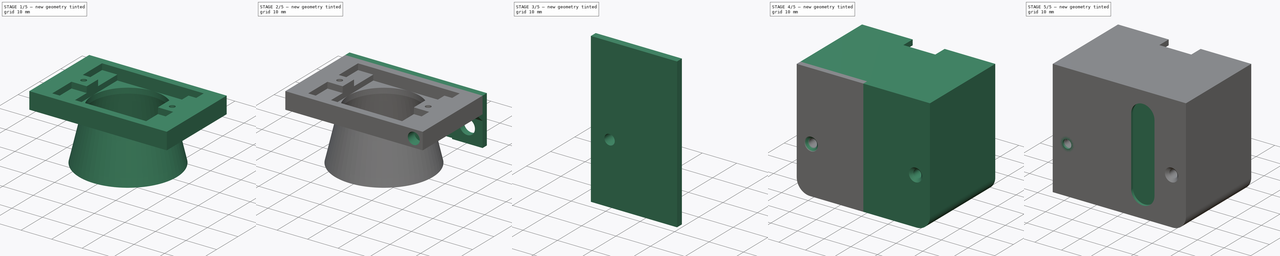
[diagram: build sequence overview — one tinted view per stage of 5, left to right]
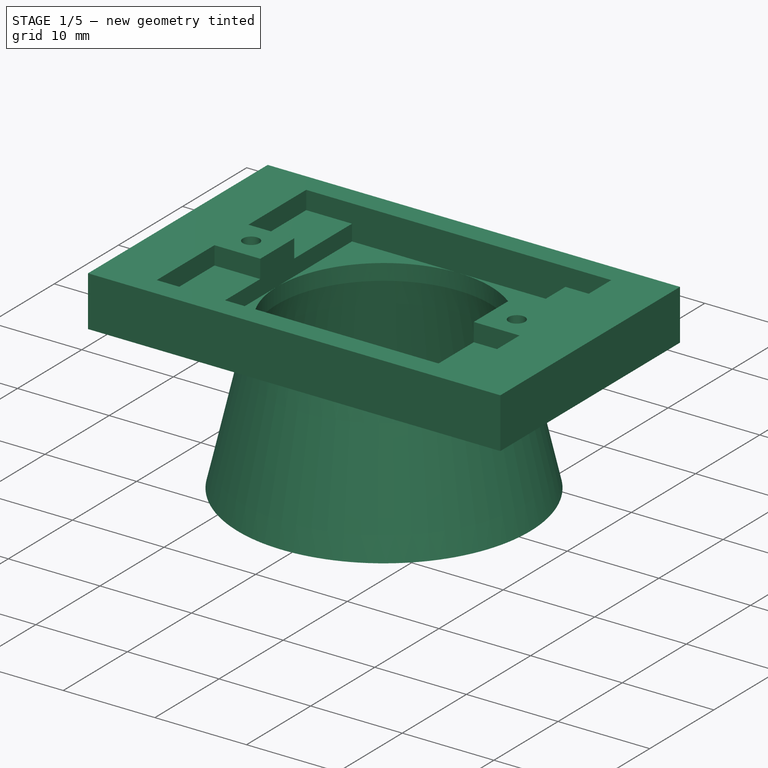
[diagram: stage 1 of 5 — iso view after this stage's code; geometry added in this stage tinted green]
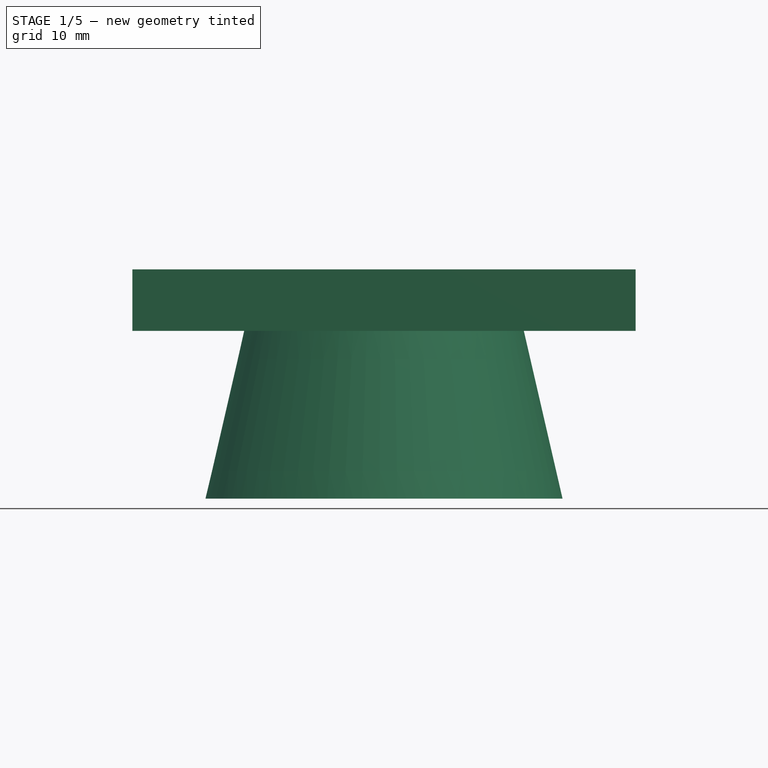
[diagram: stage 1 of 5 — front view after this stage's code; geometry added in this stage tinted green]
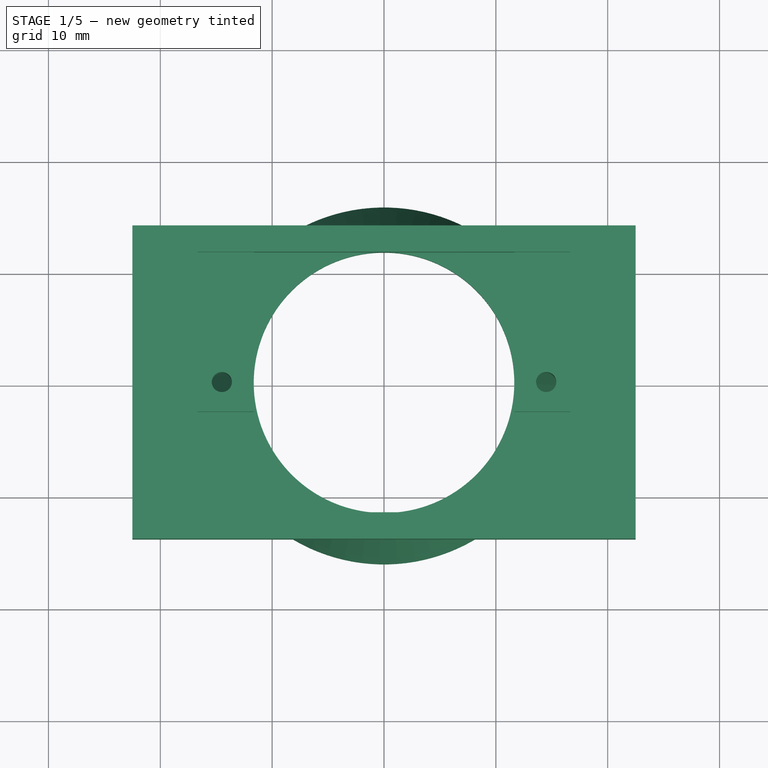
[diagram: stage 1 of 5 — top view after this stage's code; geometry added in this stage tinted green]
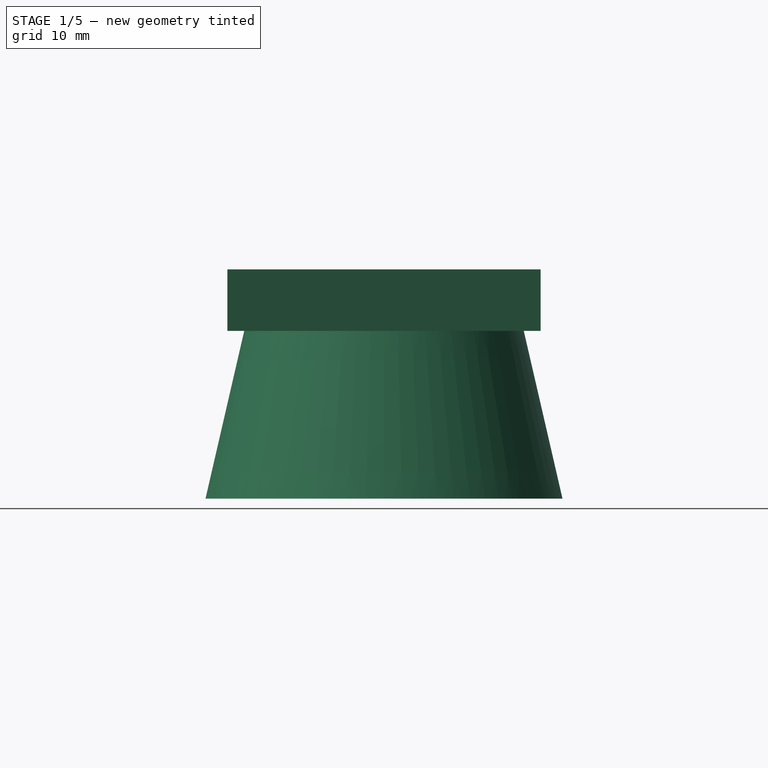
[diagram: stage 1 of 5 — right view after this stage's code; geometry added in this stage tinted green]
FCSTD DOCUMENT  (FreeCAD 0.20R)
Label: sensor
License: All rights reserved
LicenseURL: http://en.wikipedia.org/wiki/All_rights_reserved
objects: Sketcher::SketchObject×23, PartDesign::Pad×15, PartDesign::Pocket×8, PartDesign::Mirrored×7, PartDesign::Chamfer×3, PartDesign::Body×3, PartDesign::ShapeBinder×2, PartDesign::Fillet×2, PartDesign::MultiTransform×1, PartDesign::Revolution×1
note: 94 computed .brp shape members not serialized (recipe doc carries the construction recipe); baked Part::Feature solids carry a one-line shape summary decoded from their .brp

FEATURE [Sketcher::SketchObject] Sketch
  FullyConstrained = true
  MapMode = 5
  Support = -> [XY_Plane]
  sketch-geometry (6):
    g0: LineSegment StartX=-22.5 StartY=14 StartZ=0 EndX=22.5 EndY=14 EndZ=0
    g1: LineSegment StartX=22.5 StartY=14 StartZ=0 EndX=22.5 EndY=-14 EndZ=0
    g2: LineSegment StartX=22.5 StartY=-14 StartZ=0 EndX=-22.5 EndY=-14 EndZ=0
    g3: LineSegment StartX=-22.5 StartY=-14 StartZ=0 EndX=-22.5 EndY=14 EndZ=0
    g4: Circle CenterX=14.5 CenterY=0 CenterZ=0 NormalX=0 NormalY=0 NormalZ=1 AngleXU=0 Radius=0.9
    g5: Circle CenterX=-14.5 CenterY=0 CenterZ=0 NormalX=0 NormalY=0 NormalZ=1 AngleXU=0 Radius=0.9
  constraints (16):
    c: Coincident(g0,g1)
    c: Coincident(g1,g2)
    c: Coincident(g2,g3)
    c: Coincident(g3,g0)
    c: Horizontal(g0)
    c: Horizontal(g2)
    c: Vertical(g1)
    c: Vertical(g3)
    c: DistanceX(g0,g0) = 45
    c: Symmetric(g0,g1,g-1)
    c: DistanceY(g1,g1) = 28
    c: PointOnObject(g4,g-1)
    c: Symmetric(g5,g4,g-1)
    c: Equal(g5,g4)
    c: Diameter(g4) = 1.8
    c: DistanceX(g5,g4) = 29
FEATURE [PartDesign::Pad] Pad
  Direction = (0,0,1)
  Length = 5.5
  Length2 = 10
  Profile = -> Sketch
  ReferenceAxis = -> Sketch [N_Axis]
  Reversed = true
  Type = 0
FEATURE [Sketcher::SketchObject] Sketch001
  FullyConstrained = true
  MapMode = 5
  Support = -> [Pad]
  sketch-geometry (4):
    g0: LineSegment StartX=-11.65 StartY=11.65 StartZ=0 EndX=11.65 EndY=11.65 EndZ=0
    g1: LineSegment StartX=11.65 StartY=11.65 StartZ=0 EndX=11.65 EndY=-11.65 EndZ=0
    g2: LineSegment StartX=11.65 StartY=-11.65 StartZ=0 EndX=-11.65 EndY=-11.65 EndZ=0
    g3: LineSegment StartX=-11.65 StartY=-11.65 StartZ=0 EndX=-11.65 EndY=11.65 EndZ=0
  constraints (11):
    c: Coincident(g0,g1)
    c: Coincident(g1,g2)
    c: Coincident(g2,g3)
    c: Coincident(g3,g0)
    c: Horizontal(g0)
    c: Horizontal(g2)
    c: Vertical(g1)
    c: Vertical(g3)
    c: Symmetric(g1,g0,g-1)
    c: Equal(g1,g2)
    c: DistanceX(g2,g2) = 23.3
FEATURE [PartDesign::Pocket] Pocket
  BaseFeature = -> Pad
  Direction = (0,0,-1)
  Length = 3.75
  Length2 = 5
  Profile = -> Sketch001
  ReferenceAxis = -> Sketch001 [N_Axis]
  Type = 0
FEATURE [Sketcher::SketchObject] Sketch002
  ExternalGeometry = -> [Pocket]
  FullyConstrained = true
  MapMode = 5
  Support = -> [Pocket]
  sketch-geometry (4):
    g0: LineSegment StartX=11.65 StartY=11.65 StartZ=0 EndX=16.65 EndY=11.65 EndZ=0
    g1: LineSegment StartX=16.65 StartY=11.65 StartZ=0 EndX=16.65 EndY=2.65 EndZ=0
    g2: LineSegment StartX=16.65 StartY=2.65 StartZ=0 EndX=11.65 EndY=2.65 EndZ=0
    g3: LineSegment StartX=11.65 StartY=2.65 StartZ=0 EndX=11.65 EndY=11.65 EndZ=0
  constraints (11):
    c: Coincident(g0,g1)
    c: Coincident(g1,g2)
    c: Coincident(g2,g3)
    c: Coincident(g3,g0)
    c: Horizontal(g0)
    c: Horizontal(g2)
    c: Vertical(g1)
    c: Vertical(g3)
    c: Coincident(g0,g-5)
    c: DistanceX(g2,g2) = 5
    c: DistanceY(g1,g1) = 9
FEATURE [PartDesign::Pocket] Pocket001
  BaseFeature = -> Pocket
  Direction = (0,0,-1)
  Length = 2
  Length2 = 5
  Profile = -> Sketch002
  ReferenceAxis = -> Sketch002 [N_Axis]
  Type = 0
FEATURE [PartDesign::Mirrored] Mirrored
  MirrorPlane = -> Sketch002 [V_Axis]
FEATURE [PartDesign::Mirrored] Mirrored001
  MirrorPlane = -> XZ_Plane
FEATURE [PartDesign::MultiTransform] MultiTransform
  BaseFeature = -> Pocket001
  Originals = -> [Pocket001]
  Transformations = -> [Mirrored,Mirrored001]
FEATURE [Sketcher::SketchObject] Sketch003
  FullyConstrained = true
  MapMode = 5
  Placement = pos=(0,0,-5.5) rot=(1,0,0;3.14159rad)
  Support = -> [MultiTransform]
  sketch-geometry (1):
    g0: Circle CenterX=0 CenterY=0 CenterZ=0 NormalX=0 NormalY=0 NormalZ=1 AngleXU=0 Radius=12.5
  constraints (2):
    c: Coincident(g0,g-1)
    c: Diameter(g0) = 25
FEATURE [PartDesign::Pad] Pad001
  BaseFeature = -> MultiTransform
  Direction = (0,0,-1)
  Length = 15
  Length2 = 10
  Profile = -> Sketch003
  ReferenceAxis = -> Sketch003 [N_Axis]
  TaperAngle = 13
  Type = 0
FEATURE [Sketcher::SketchObject] Sketch004
  ExternalGeometry = -> [Pad001]
  FullyConstrained = true
  MapMode = 5
  Placement = pos=(0,0,-3.75) rot=(0,0,1;0rad)
  Support = -> [Pad001]
  sketch-geometry (1):
    g0: Circle CenterX=0 CenterY=0 CenterZ=0 NormalX=0 NormalY=0 NormalZ=1 AngleXU=0 Radius=11.65
  constraints (2):
    c: Coincident(g0,g-1)
    c: Tangent(g0,g-4)
FEATURE [PartDesign::Pocket] Pocket002
  BaseFeature = -> Pad001
  Direction = (0,0,-1)
  Length = 0
  Length2 = 5
  Profile = -> Sketch004
  ReferenceAxis = -> Sketch004 [N_Axis]
  Type = 3
  UpToFace = -> Pad001 [Face5]
FEATURE [Sketcher::SketchObject] Sketch005
  ExternalGeometry = -> [Pocket002]
  FullyConstrained = true
  MapMode = 5
  Placement = pos=(0,0,-5.5) rot=(0,0,1;0rad)
  Support = -> [Pocket002]
  sketch-geometry (1):
    g0: Circle CenterX=0 CenterY=0 CenterZ=0 NormalX=0 NormalY=0 NormalZ=1 AngleXU=0 Radius=11.65
  constraints (2):
    c: Coincident(g0,g-1)
    c: Equal(g0,g-3)
FEATURE [PartDesign::Pocket] Pocket003
  BaseFeature = -> Pocket002
  Direction = (0,0,-1)
  Length = 15
  Length2 = 5
  Profile = -> Sketch005
  ReferenceAxis = -> Sketch005 [N_Axis]
  TaperAngle = 13
  Type = 0
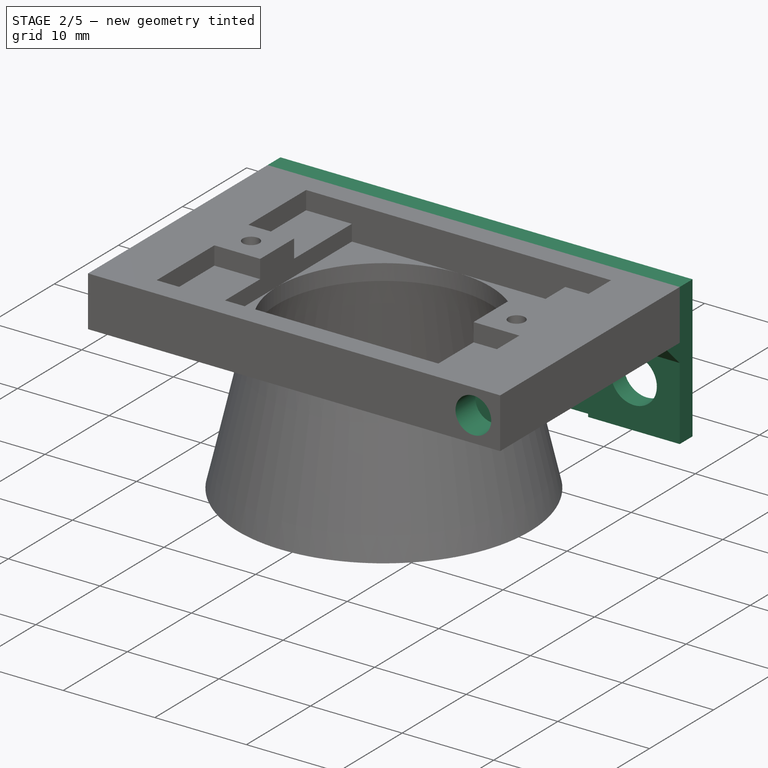
[diagram: stage 2 of 5 — iso view after this stage's code; geometry added in this stage tinted green]
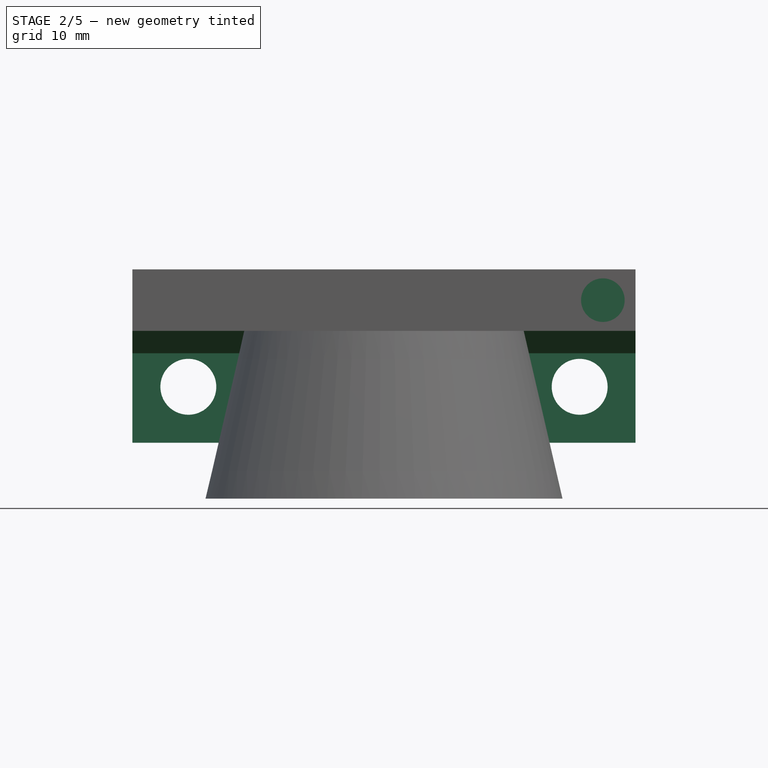
[diagram: stage 2 of 5 — front view after this stage's code; geometry added in this stage tinted green]
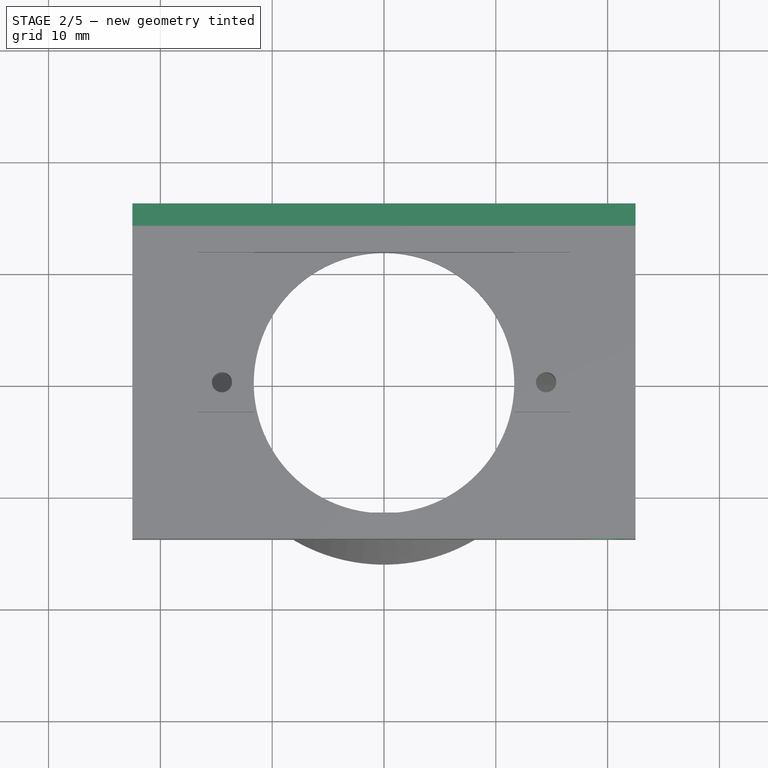
[diagram: stage 2 of 5 — top view after this stage's code; geometry added in this stage tinted green]
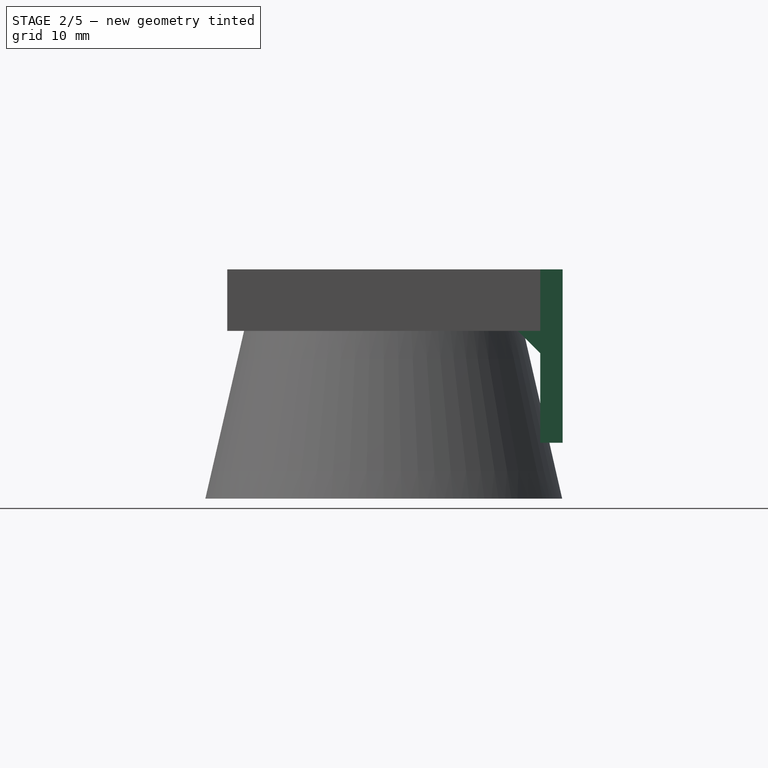
[diagram: stage 2 of 5 — right view after this stage's code; geometry added in this stage tinted green]
FEATURE [Sketcher::SketchObject] Sketch006
  ExternalGeometry = -> [Pocket003]
  FullyConstrained = true
  MapMode = 5
  Placement = pos=(0,14,0) rot=(0,0.707107,0.707107;3.14159rad)
  Support = -> [Pocket003]
  sketch-geometry (5):
    g0: Circle CenterX=-17.5 CenterY=-10.5 CenterZ=0 NormalX=0 NormalY=0 NormalZ=1 AngleXU=0 Radius=2.5
    g1: LineSegment StartX=-22.5 StartY=-5.5 StartZ=0 EndX=-12.5 EndY=-5.5 EndZ=0
    g2: LineSegment StartX=-12.5 StartY=-5.5 StartZ=0 EndX=-12.5 EndY=-15.5 EndZ=0
    g3: LineSegment StartX=-12.5 StartY=-15.5 StartZ=0 EndX=-22.5 EndY=-15.5 EndZ=0
    g4: LineSegment StartX=-22.5 StartY=-15.5 StartZ=0 EndX=-22.5 EndY=-5.5 EndZ=0
  constraints (13):
    c: Diameter(g0) = 5
    c: Coincident(g1,g2)
    c: Coincident(g2,g3)
    c: Coincident(g3,g4)
    c: Coincident(g4,g1)
    c: Horizontal(g1)
    c: Horizontal(g3)
    c: Vertical(g2)
    c: Vertical(g4)
    c: Coincident(g1,g-3)
    c: Symmetric(g2,g1,g0)
    c: Equal(g3,g2)
    c: DistanceY(g2,g2) = 10
FEATURE [PartDesign::Pad] Pad002
  BaseFeature = -> Pocket003
  Direction = (0,1,0)
  Length = 2
  Length2 = 10
  Profile = -> Pocket003 [Face1]
  Type = 0
FEATURE [PartDesign::Pad] Pad003
  BaseFeature = -> Pad002
  Direction = (0,1,-2e-16)
  Length = 10
  Length2 = 10
  Profile = -> Sketch006
  ReferenceAxis = -> Sketch006 [N_Axis]
  Type = 3
  UpToFace = -> Pad002 [Face9]
FEATURE [PartDesign::Mirrored] Mirrored002
  BaseFeature = -> Pad003
  MirrorPlane = -> Sketch006 [V_Axis]
  Originals = -> [Pad003]
FEATURE [PartDesign::Chamfer] Chamfer
  Angle = 45
  Base = -> Mirrored002 [Edge33,Edge31]
  BaseFeature = -> Mirrored002
  ChamferType = 0
  FlipDirection = false
  Size = 2
  Size2 = 1
  SupportTransform = false
  UseAllEdges = false
FEATURE [Sketcher::SketchObject] Sketch007
  ExternalGeometry = -> [Chamfer]
  FullyConstrained = true
  MapMode = 5
  Placement = pos=(0,0,-5.5) rot=(1,0,0;3.14159rad)
  Support = -> [Chamfer]
  sketch-geometry (4):
    g0: LineSegment StartX=-12.5 StartY=-16 StartZ=0 EndX=12.5 EndY=-16 EndZ=0
    g1: LineSegment StartX=12.5 StartY=-16 StartZ=0 EndX=12.5 EndY=-14.55 EndZ=0
    g2: LineSegment StartX=12.5 StartY=-14.55 StartZ=0 EndX=-12.5 EndY=-14.55 EndZ=0
    g3: LineSegment StartX=-12.5 StartY=-14.55 StartZ=0 EndX=-12.5 EndY=-16 EndZ=0
  constraints (11):
    c: Coincident(g0,g1)
    c: Coincident(g1,g2)
    c: Coincident(g2,g3)
    c: Coincident(g3,g0)
    c: Horizontal(g0)
    c: Horizontal(g2)
    c: Vertical(g1)
    c: Vertical(g3)
    c: Coincident(g0,g-5)
    c: PointOnObject(g1,g-3)
    c: DistanceY(g1,g1) = 1.45
FEATURE [PartDesign::Pad] Pad004
  BaseFeature = -> Chamfer
  Direction = (0,0,-1)
  Length = 10
  Length2 = 10
  Profile = -> Sketch007
  ReferenceAxis = -> Sketch007 [N_Axis]
  Type = 3
  UpToFace = -> Chamfer [Face40]
FEATURE [PartDesign::Chamfer] Chamfer001
  Angle = 45
  Base = -> Pad004 [Edge56]
  BaseFeature = -> Pad004
  ChamferType = 0
  FlipDirection = false
  Size = 2
  Size2 = 1
  SupportTransform = false
  UseAllEdges = false
FEATURE [Sketcher::SketchObject] Sketch008
  ExternalGeometry = -> [Chamfer001]
  FullyConstrained = true
  MapMode = 5
  Placement = pos=(0,-14,0) rot=(1,0,0;1.5708rad)
  Support = -> [Chamfer001]
  sketch-geometry (1):
    g0: Circle CenterX=19.575 CenterY=-2.75 CenterZ=0 NormalX=0 NormalY=0 NormalZ=1 AngleXU=0 Radius=1.95
  constraints (2):
    c: Symmetric(g-3,g-5,g0)
    c: Diameter(g0) = 3.9
FEATURE [PartDesign::Pocket] Pocket004
  BaseFeature = -> Chamfer001
  Direction = (0,1,-2e-16)
  Length = 3.1
  Length2 = 5
  Profile = -> Sketch008
  ReferenceAxis = -> Sketch008 [N_Axis]
  Type = 0
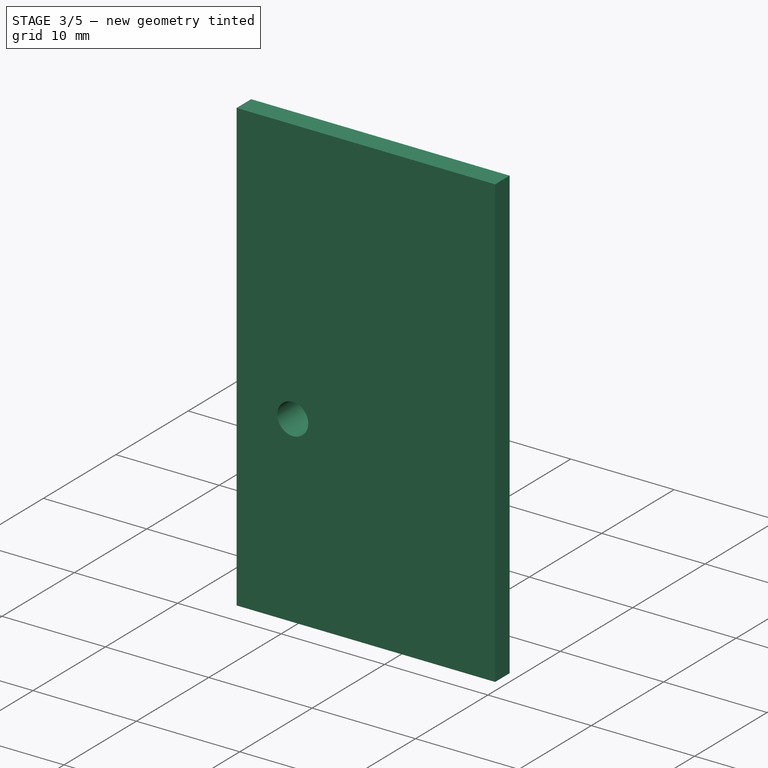
[diagram: stage 3 of 5 — iso view after this stage's code; geometry added in this stage tinted green]
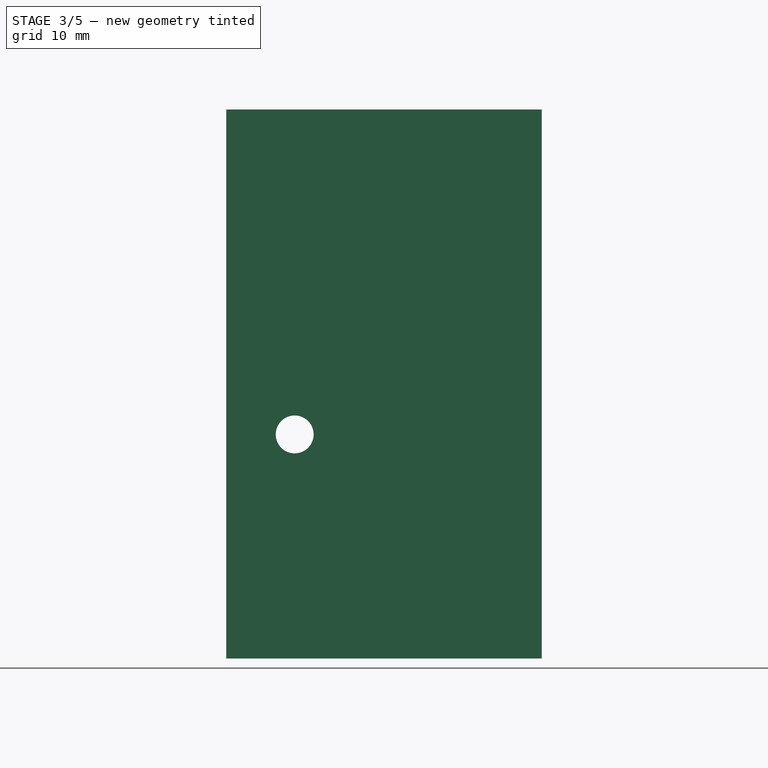
[diagram: stage 3 of 5 — front view after this stage's code; geometry added in this stage tinted green]
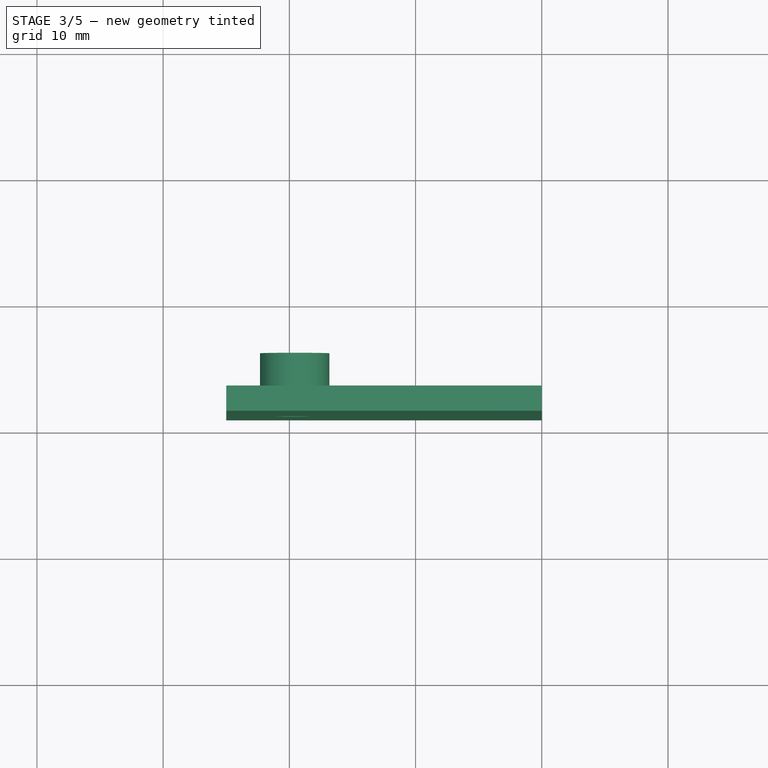
[diagram: stage 3 of 5 — top view after this stage's code; geometry added in this stage tinted green]
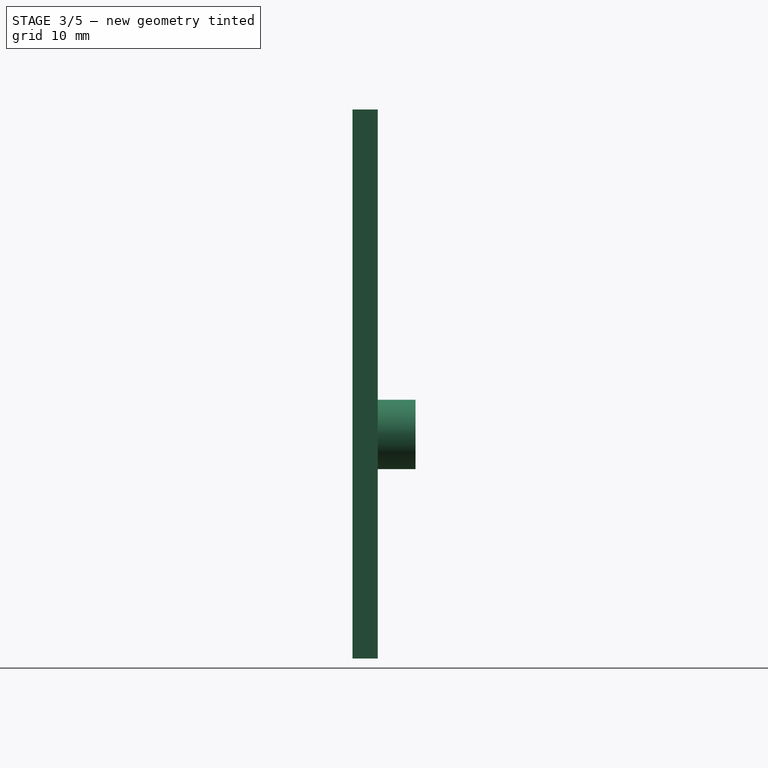
[diagram: stage 3 of 5 — right view after this stage's code; geometry added in this stage tinted green]
FEATURE [Sketcher::SketchObject] Sketch009
  ExternalGeometry = -> [Pocket004]
  FullyConstrained = true
  MapMode = 5
  Placement = pos=(3.3e-15,-10.9,5.8e-15) rot=(1,0,0;1.5708rad)
  Support = -> [Pocket004]
  sketch-geometry (1):
    g0: Circle CenterX=19.575 CenterY=-2.75 CenterZ=0 NormalX=0 NormalY=0 NormalZ=1 AngleXU=0 Radius=1.5
  constraints (2):
    c: Coincident(g0,g-3)
    c: Diameter(g0) = 3
FEATURE [PartDesign::Pocket] Pocket005
  BaseFeature = -> Pocket004
  Direction = (-3e-16,1,-4e-16)
  Length = 10
  Length2 = 5
  Profile = -> Sketch009
  ReferenceAxis = -> Sketch009 [N_Axis]
  Type = 0
FEATURE [PartDesign::Mirrored] Mirrored003
  BaseFeature = -> Pocket005
  MirrorPlane = -> Sketch008 [V_Axis]
  Originals = -> [Pocket004,Pocket005]
FEATURE [Sketcher::SketchObject] Sketch010
  ExternalGeometry = -> [Mirrored003]
  FullyConstrained = true
  MapMode = 5
  Placement = pos=(0,0,-20.5) rot=(1,0,0;3.14159rad)
  Support = -> [Mirrored003]
  sketch-geometry (3):
    g0: LineSegment StartX=16 StartY=-16 StartZ=0 EndX=-3.6e-15 EndY=-16 EndZ=0
    g1: LineSegment StartX=16 StartY=-16 StartZ=0 EndX=16 EndY=0 EndZ=0
    g2: ArcOfCircle CenterX=0 CenterY=0 CenterZ=0 NormalX=0 NormalY=0 NormalZ=1 AngleXU=0 Radius=16 StartAngle=4.71239 EndAngle=6.28319
  constraints (11):
    c: PointOnObject(g0,g-3)
    c: Horizontal(g0)
    c: Diameter(g-5) = 31.926
    c: Coincident(g1,g0)
    c: Vertical(g1)
    c: PointOnObject(g0,g-2)
    c: PointOnObject(g1,g-1)
    c: DistanceX(g0,g0) = 16
    c: Coincident(g2,g-5)
    c: Coincident(g2,g1)
    c: Coincident(g2,g0)
FEATURE [PartDesign::Pad] Pad005
  BaseFeature = -> Mirrored003
  Direction = (0,0,-1)
  Length = 10
  Length2 = 10
  Profile = -> Sketch010
  ReferenceAxis = -> Sketch010 [N_Axis]
  Reversed = true
  Type = 3
  UpToFace = -> Mirrored003 [Face26]
FEATURE [PartDesign::Mirrored] Mirrored004
  BaseFeature = -> Pad005
  MirrorPlane = -> Sketch010 [V_Axis]
  Originals = -> [Pad005]
FEATURE [Sketcher::SketchObject] Sketch011
  ExternalGeometry = -> [Mirrored004]
  FullyConstrained = true
  MapMode = 5
  Placement = pos=(0,0,0) rot=(0.57735,0.57735,0.57735;2.0944rad)
  Support = -> [YZ_Plane]
  sketch-geometry (4):
    g0: LineSegment StartX=-12.5 StartY=-5.5 StartZ=0 EndX=-15.963 EndY=-20.5 EndZ=0
    g1: LineSegment StartX=-15.963 StartY=-20.5 StartZ=0 EndX=-14.8087 EndY=-15.5 EndZ=0
    g2: LineSegment StartX=-14.8087 StartY=-15.5 StartZ=0 EndX=-15.963 EndY=-15.5 EndZ=0
    g3: LineSegment StartX=-15.963 StartY=-15.5 StartZ=0 EndX=-15.963 EndY=-20.5 EndZ=0
  constraints (10):
    c: Coincident(g0,g-6)
    c: Coincident(g0,g-5)
    c: Coincident(g1,g0)
    c: PointOnObject(g1,g0)
    c: Coincident(g2,g1)
    c: Horizontal(g2)
    c: Coincident(g3,g2)
    c: Coincident(g3,g1)
    c: Vertical(g3)
    c: PointOnObject(g-4,g2)
FEATURE [PartDesign::Revolution] Revolution
  Angle = 360
  Axis = (-2e-16,3e-16,1)
  Base = (0,0,0)
  BaseFeature = -> Mirrored004
  Profile = -> Sketch011
  ReferenceAxis = -> Sketch011 [V_Axis]
FEATURE [PartDesign::Body] Body001
  Group = -> [CopyRevolution,Sketch012,Pad006,Sketch013,Pad007,Sketch014,Pad008,Sketch015,Pocket006,Sketch016,Pad009]
  Origin = -> Origin001
  Tip = -> Pad009
FEATURE [PartDesign::ShapeBinder] CopyRevolution002
  Support = -> [Revolution]
  TraceSupport = false
FEATURE [Sketcher::SketchObject] Sketch017
  FullyConstrained = true
  MapMode = 5
  Placement = pos=(0,-14,0) rot=(1,0,0;1.5708rad)
  Support = -> [CopyRevolution002]
  sketch-geometry (2):
    g0: Circle CenterX=-19.5766 CenterY=-2.74551 CenterZ=0 NormalX=0 NormalY=0 NormalZ=1 AngleXU=0 Radius=1.5
    g1: Circle CenterX=-19.5766 CenterY=-2.74551 CenterZ=0 NormalX=0 NormalY=0 NormalZ=1 AngleXU=0 Radius=2.75
  constraints (4):
    c: Diameter(g0) = 3
    c: Coincident(g1,g0)
    c: Diameter(g1) = 5.5
    c: Block(g0)
FEATURE [PartDesign::Pad] Pad010
  Direction = (0,-1,2e-16)
  Length = 5
  Length2 = 10
  Profile = -> Sketch017
  ReferenceAxis = -> Sketch017 [N_Axis]
  Type = 0
FEATURE [Sketcher::SketchObject] Sketch018
  ExternalGeometry = -> [Pad010]
  FullyConstrained = true
  MapMode = 5
  Placement = pos=(4.6e-15,-19,8e-15) rot=(1,0,0;1.5708rad)
  Support = -> [Pad010]
  sketch-geometry (5):
    g0: Circle CenterX=-19.5766 CenterY=-2.74551 CenterZ=0 NormalX=0 NormalY=0 NormalZ=1 AngleXU=0 Radius=1.5
    g1: LineSegment StartX=-25 StartY=-20.5 StartZ=0 EndX=0 EndY=-20.5 EndZ=0
    g2: LineSegment StartX=0 StartY=-20.5 StartZ=0 EndX=0 EndY=23 EndZ=0
    g3: LineSegment StartX=0 StartY=23 StartZ=0 EndX=-25 EndY=23 EndZ=0
    g4: LineSegment StartX=-25 StartY=23 StartZ=0 EndX=-25 EndY=-20.5 EndZ=0
  constraints (14):
    c: Coincident(g0,g-3)
    c: Equal(g0,g-3)
    c: Coincident(g1,g2)
    c: Coincident(g2,g3)
    c: Coincident(g3,g4)
    c: Coincident(g4,g1)
    c: Horizontal(g1)
    c: Horizontal(g3)
    c: Vertical(g2)
    c: Vertical(g4)
    c: PointOnObject(g2,g-2)
    c: DistanceY(g-1,g2) = 23
    c: DistanceY(g1,g-1) = 20.5
    c: DistanceX(g1,g1) = 25
FEATURE [PartDesign::Pad] Pad011
  BaseFeature = -> Pad010
  Direction = (2e-16,-1,4e-16)
  Length = 2
  Length2 = 10
  Profile = -> Sketch018
  ReferenceAxis = -> Sketch018 [N_Axis]
  Reversed = true
  Type = 0
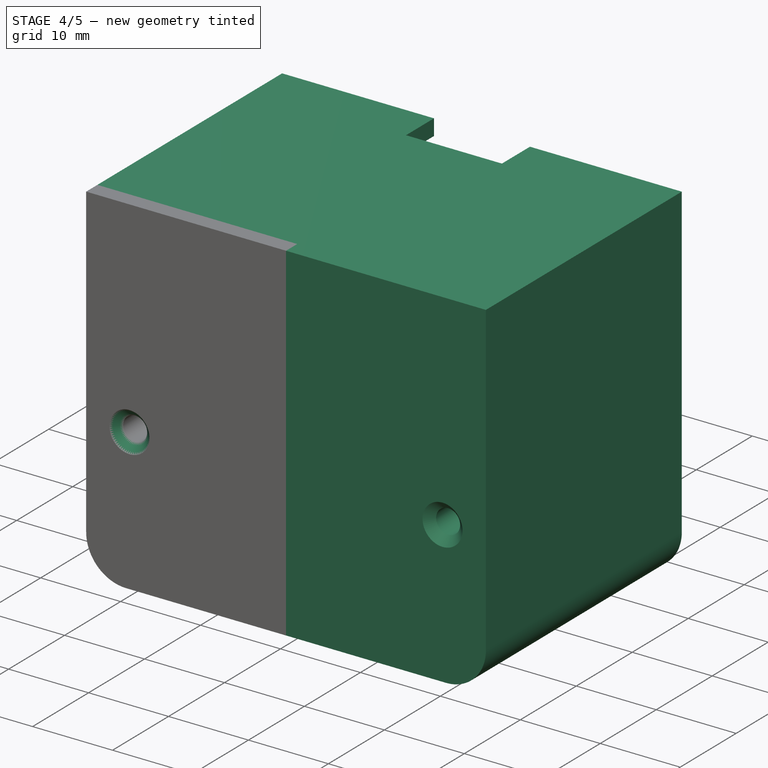
[diagram: stage 4 of 5 — iso view after this stage's code; geometry added in this stage tinted green]
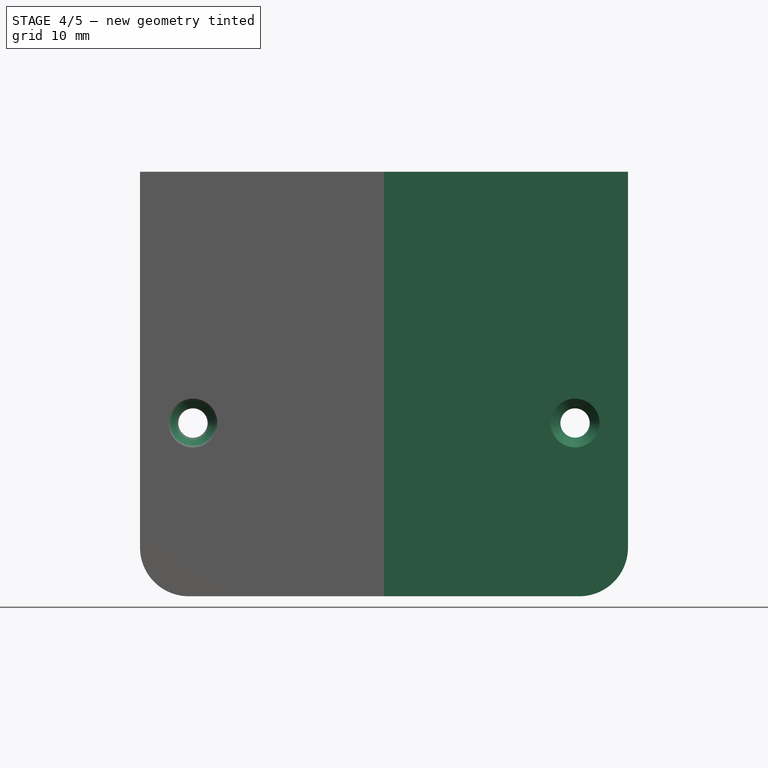
[diagram: stage 4 of 5 — front view after this stage's code; geometry added in this stage tinted green]
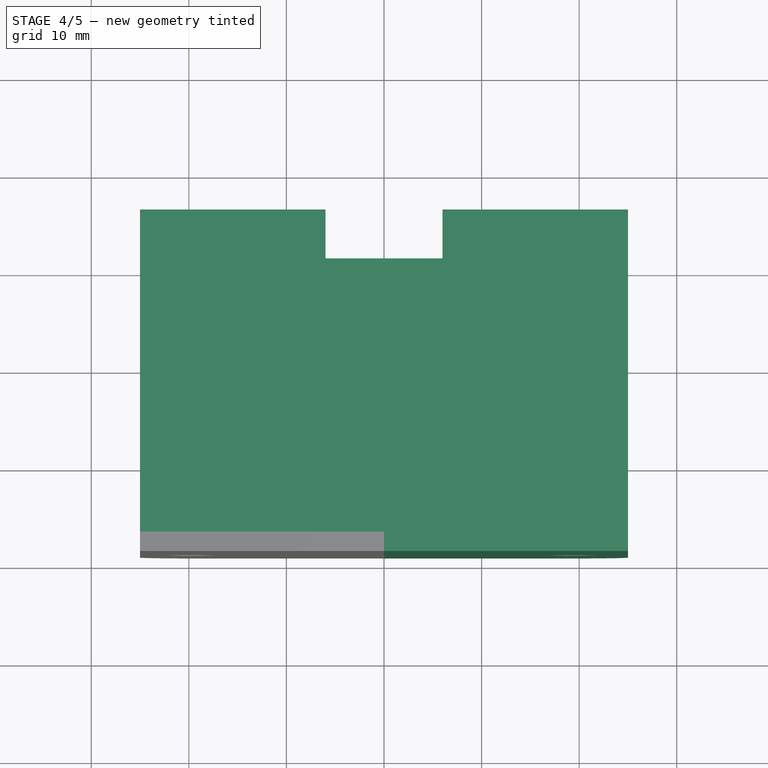
[diagram: stage 4 of 5 — top view after this stage's code; geometry added in this stage tinted green]
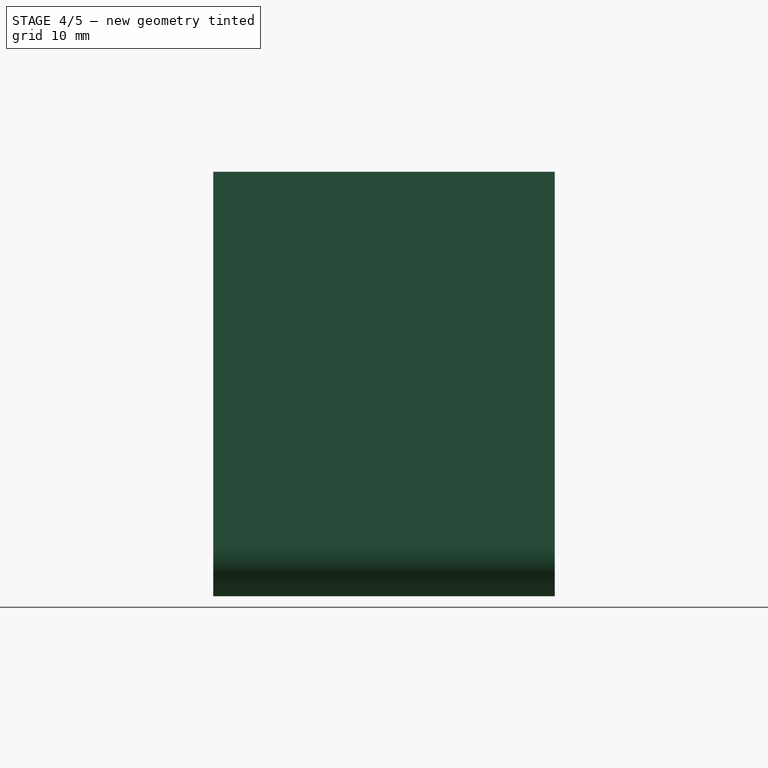
[diagram: stage 4 of 5 — right view after this stage's code; geometry added in this stage tinted green]
FEATURE [Sketcher::SketchObject] Sketch019
  ExternalGeometry = -> [Pad011]
  FullyConstrained = true
  MapMode = 5
  Placement = pos=(0,-9e-15,-20.5) rot=(1,0,0;3.14159rad)
  Support = -> [Pad011]
  sketch-geometry (6):
    g0: LineSegment StartX=-25 StartY=17 StartZ=0 EndX=-25 EndY=-16 EndZ=0
    g1: LineSegment StartX=-25 StartY=-16 StartZ=0 EndX=-16.2 EndY=-16 EndZ=0
    g2: LineSegment StartX=-16.2 StartY=-16 StartZ=0 EndX=-16.2 EndY=0 EndZ=0
    g3: ArcOfCircle CenterX=0 CenterY=0 CenterZ=0 NormalX=0 NormalY=0 NormalZ=1 AngleXU=0 Radius=16.2 StartAngle=1.5708 EndAngle=3.14159
    g4: LineSegment StartX=0 StartY=17 StartZ=0 EndX=1e-15 EndY=16.2 EndZ=0
    g5: LineSegment StartX=-25 StartY=17 StartZ=0 EndX=0 EndY=17 EndZ=0
  constraints (16):
    c: Coincident(g0,g-3)
    c: Vertical(g0)
    c: Coincident(g1,g0)
    c: Horizontal(g1)
    c: Coincident(g2,g1)
    c: PointOnObject(g2,g-1)
    c: Vertical(g2)
    c: Coincident(g3,g-1)
    c: Coincident(g3,g2)
    c: PointOnObject(g3,g-2)
    c: Coincident(g4,g-3)
    c: Coincident(g4,g3)
    c: Coincident(g5,g0)
    c: Coincident(g5,g4)
    c: DistanceY(g0,g3) = 16
    c: DistanceX(g2,g3) = 16.2
FEATURE [PartDesign::Pad] Pad012
  BaseFeature = -> Pad011
  Direction = (0,-4e-16,-1)
  Length = 5
  Length2 = 10
  Profile = -> Sketch019
  ReferenceAxis = -> Sketch019 [N_Axis]
  Reversed = true
  Type = 0
FEATURE [Sketcher::SketchObject] Sketch020
  ExternalGeometry = -> [Pad012]
  FullyConstrained = true
  MapMode = 5
  Placement = pos=(-25,0,0) rot=(0.57735,-0.57735,-0.57735;2.0944rad)
  Support = -> [Pad012]
  sketch-geometry (4):
    g0: LineSegment StartX=17 StartY=23 StartZ=0 EndX=-16 EndY=23 EndZ=0
    g1: LineSegment StartX=-16 StartY=23 StartZ=0 EndX=-16 EndY=-15.5 EndZ=0
    g2: LineSegment StartX=-16 StartY=-15.5 StartZ=0 EndX=17 EndY=-15.5 EndZ=0
    g3: LineSegment StartX=17 StartY=-15.5 StartZ=0 EndX=17 EndY=23 EndZ=0
  constraints (10):
    c: Coincident(g0,g1)
    c: Coincident(g1,g2)
    c: Coincident(g2,g3)
    c: Coincident(g3,g0)
    c: Horizontal(g0)
    c: Horizontal(g2)
    c: Vertical(g1)
    c: Vertical(g3)
    c: Coincident(g0,g-4)
    c: Coincident(g1,g-3)
FEATURE [PartDesign::Pad] Pad013
  BaseFeature = -> Pad012
  Direction = (-1,0,0)
  Length = 2.5
  Length2 = 10
  Profile = -> Sketch020
  ReferenceAxis = -> Sketch020 [N_Axis]
  Reversed = true
  Type = 0
FEATURE [Sketcher::SketchObject] Sketch021
  ExternalGeometry = -> [Pad013]
  FullyConstrained = true
  MapMode = 5
  Placement = pos=(0,0,23) rot=(0,0,1;0rad)
  Support = -> [Pad013]
  sketch-geometry (6):
    g0: LineSegment StartX=-25 StartY=16 StartZ=0 EndX=-6 EndY=16 EndZ=0
    g1: LineSegment StartX=4.6e-15 StartY=11 StartZ=0 EndX=4.6e-15 EndY=-19 EndZ=0
    g2: LineSegment StartX=4.6e-15 StartY=-19 StartZ=0 EndX=-25 EndY=-19 EndZ=0
    g3: LineSegment StartX=-25 StartY=-19 StartZ=0 EndX=-25 EndY=16 EndZ=0
    g4: LineSegment StartX=-6 StartY=16 StartZ=0 EndX=-6 EndY=11 EndZ=0
    g5: LineSegment StartX=-6 StartY=11 StartZ=0 EndX=4.4e-15 EndY=11 EndZ=0
  constraints (16):
    c: Coincident(g1,g2)
    c: Coincident(g2,g3)
    c: Coincident(g3,g0)
    c: Horizontal(g0)
    c: Horizontal(g2)
    c: Vertical(g1)
    c: Vertical(g3)
    c: Coincident(g0,g-4)
    c: Coincident(g1,g-3)
    c: Coincident(g4,g5)
    c: Horizontal(g5)
    c: Vertical(g4)
    c: DistanceX(g5,g5) = 6
    c: DistanceY(g4,g4) = 5
    c: Coincident(g0,g4)
    c: Coincident(g1,g5)
FEATURE [PartDesign::Pad] Pad014
  BaseFeature = -> Pad013
  Direction = (0,0,1)
  Length = 2
  Length2 = 10
  Profile = -> Sketch021
  ReferenceAxis = -> Sketch021 [N_Axis]
  Reversed = true
  Type = 0
FEATURE [PartDesign::Fillet] Fillet
  Base = -> Pad014 [Edge7,Edge24,Edge8]
  BaseFeature = -> Pad014
  Radius = 2
  SupportTransform = false
  UseAllEdges = false
FEATURE [PartDesign::Fillet] Fillet001
  Base = -> Fillet [Edge70]
  BaseFeature = -> Fillet
  Radius = 4.99
  SupportTransform = false
  UseAllEdges = false
FEATURE [PartDesign::Chamfer] Chamfer002
  Angle = 45
  Base = -> Fillet001 [Edge88]
  BaseFeature = -> Fillet001
  ChamferType = 0
  FlipDirection = false
  Size = 1
  Size2 = 1
  SupportTransform = false
  UseAllEdges = false
FEATURE [PartDesign::Mirrored] Mirrored005
  BaseFeature = -> Chamfer002
  MirrorPlane = -> Sketch017 [V_Axis]
  Originals = -> [Pad010,Pad011,Pad012,Pad013,Pad014,Fillet,Chamfer002,Fillet001]
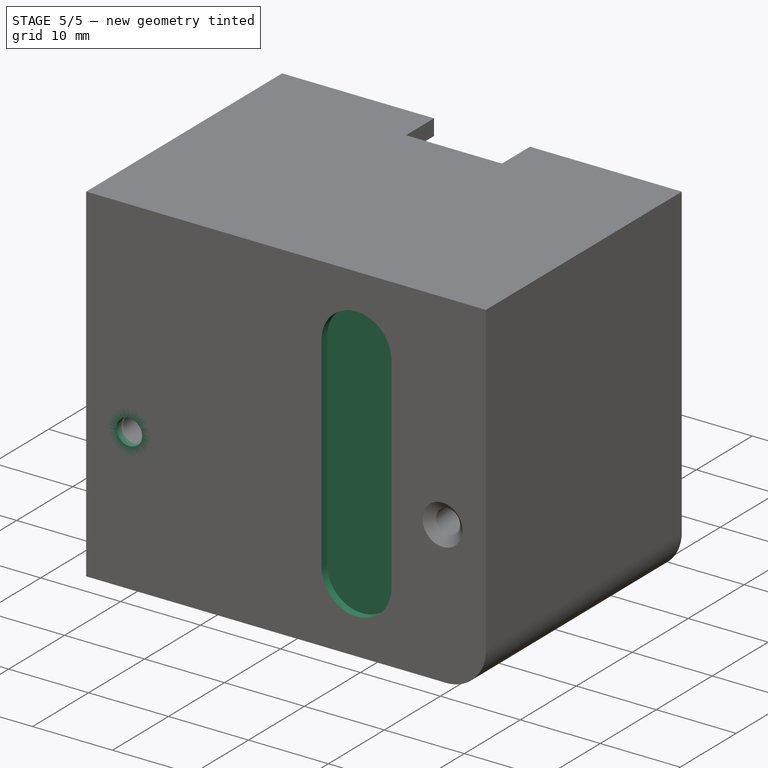
[diagram: stage 5 of 5 — iso view after this stage's code; geometry added in this stage tinted green]
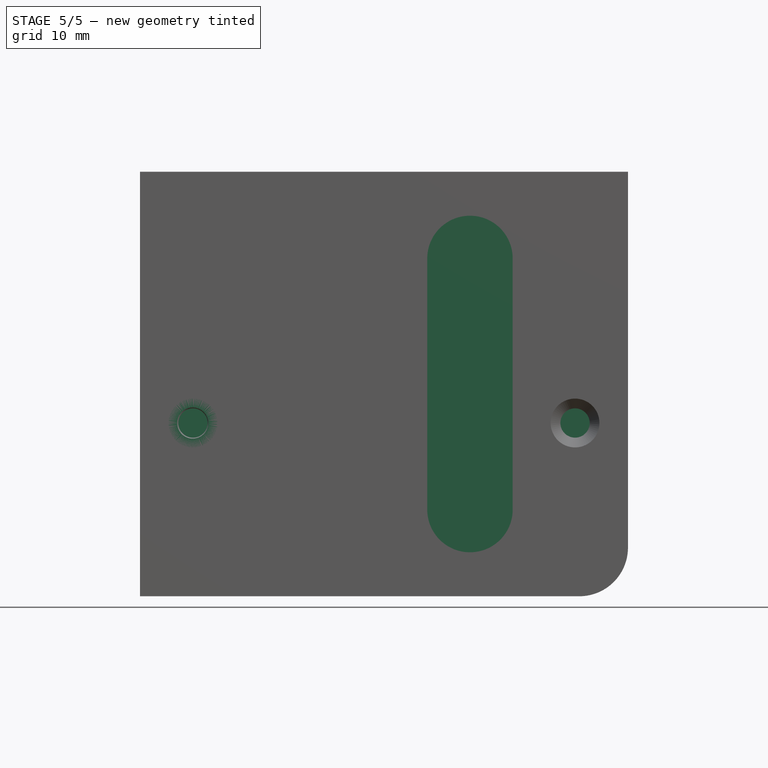
[diagram: stage 5 of 5 — front view after this stage's code; geometry added in this stage tinted green]
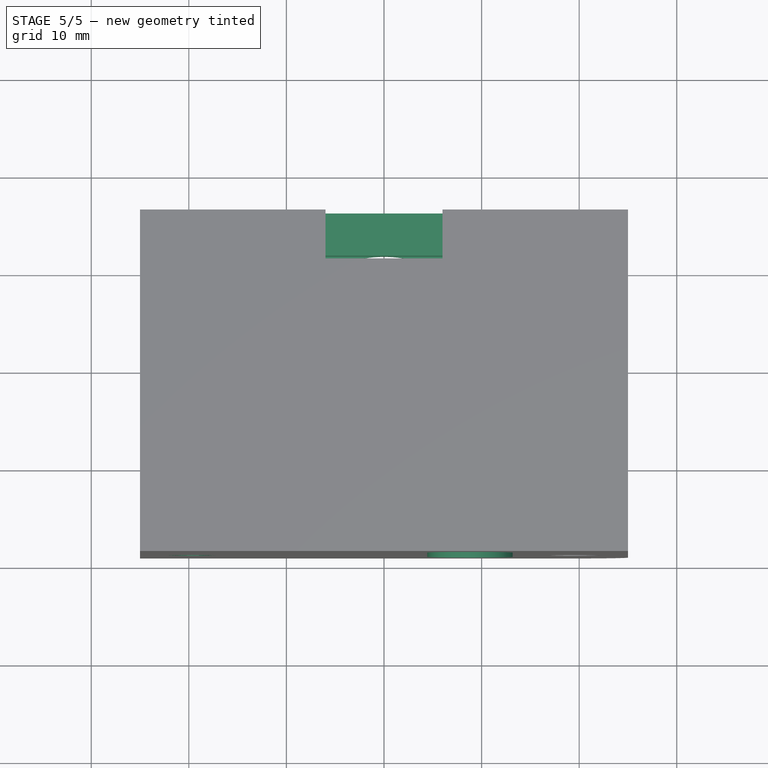
[diagram: stage 5 of 5 — top view after this stage's code; geometry added in this stage tinted green]
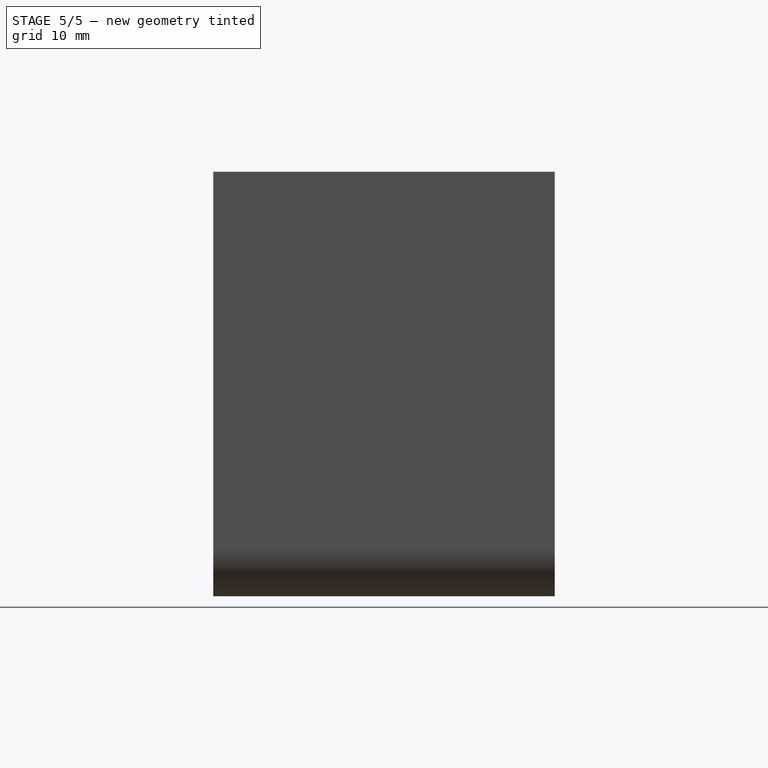
[diagram: stage 5 of 5 — right view after this stage's code; geometry added in this stage tinted green]
FEATURE [PartDesign::Body] Body
  Group = -> [Sketch,Pad,Sketch001,Pocket,Sketch002,Pocket001,MultiTransform,Mirrored,Mirrored001,Sketch003,Pad001,Sketch004,Pocket002,Sketch005,Pocket003,Sketch006,Pad002,Pad003,Mirrored002,Chamfer,Sketch007,Pad004,Chamfer001,Sketch008,Pocket004,Sketch009,Pocket005,Mirrored003,Sketch010,Pad005,Mirrored004,Sketch011,Revolution]
  Origin = -> Origin
  Tip = -> Revolution
FEATURE [PartDesign::ShapeBinder] CopyRevolution
  TraceSupport = false
FEATURE [Sketcher::SketchObject] Sketch012
  FullyConstrained = true
  MapMode = 5
  Placement = pos=(0,-14,0) rot=(1,0,0;1.5708rad)
  Support = -> [Revolution]
  sketch-geometry (2):
    g0: Circle CenterX=-19.6 CenterY=-2.75 CenterZ=0 NormalX=0 NormalY=0 NormalZ=1 AngleXU=0 Radius=2.75
    g1: Circle CenterX=-19.6 CenterY=-2.75 CenterZ=0 NormalX=0 NormalY=0 NormalZ=1 AngleXU=0 Radius=1.6
  constraints (5):
    c: DistanceY(g0,g-1) = 2.75
    c: Diameter(g0) = 5.5
    c: DistanceX(g0,g-1) = 19.6
    c: Coincident(g1,g0)
    c: Diameter(g1) = 3.2
FEATURE [PartDesign::Pad] Pad006
  Direction = (0,-1,2e-16)
  Length = 5
  Length2 = 10
  Profile = -> Sketch012
  ReferenceAxis = -> Sketch012 [N_Axis]
  Type = 0
FEATURE [Sketcher::SketchObject] Sketch013
  ExternalGeometry = -> [Pad006]
  FullyConstrained = true
  MapMode = 5
  Placement = pos=(4.6e-15,-19,8e-15) rot=(1,0,0;1.5708rad)
  Support = -> [Pad006]
  sketch-geometry (5):
    g0: LineSegment StartX=0 StartY=23 StartZ=0 EndX=-25 EndY=23 EndZ=0
    g1: LineSegment StartX=-25 StartY=23 StartZ=0 EndX=-25 EndY=-20.5 EndZ=0
    g2: LineSegment StartX=-25 StartY=-20.5 StartZ=0 EndX=0 EndY=-20.5 EndZ=0
    g3: LineSegment StartX=0 StartY=-20.5 StartZ=0 EndX=0 EndY=23 EndZ=0
    g4: Circle CenterX=-19.6 CenterY=-2.75 CenterZ=0 NormalX=0 NormalY=0 NormalZ=1 AngleXU=0 Radius=1.6
  constraints (14):
    c: Coincident(g0,g1)
    c: Coincident(g1,g2)
    c: Coincident(g2,g3)
    c: Coincident(g3,g0)
    c: Horizontal(g0)
    c: Horizontal(g2)
    c: Vertical(g1)
    c: Vertical(g3)
    c: PointOnObject(g0,g-2)
    c: DistanceY(g-1,g0) = 23
    c: PointOnObject(g2,g-4)
    c: DistanceX(g0,g0) = 25
    c: Coincident(g4,g-5)
    c: Equal(g4,g-5)
FEATURE [PartDesign::Pad] Pad007
  BaseFeature = -> Pad006
  Direction = (2e-16,-1,4e-16)
  Length = 1.5
  Length2 = 10
  Profile = -> Sketch013
  ReferenceAxis = -> Sketch013 [N_Axis]
  Reversed = true
  Type = 0
FEATURE [Sketcher::SketchObject] Sketch014
  ExternalGeometry = -> [Pad007]
  FullyConstrained = true
  MapMode = 5
  Placement = pos=(0,-9e-15,-20.5) rot=(1,0,0;3.14159rad)
  Support = -> [Pad007]
  sketch-geometry (7):
    g0: ArcOfCircle CenterX=0 CenterY=0 CenterZ=0 NormalX=0 NormalY=0 NormalZ=1 AngleXU=0 Radius=16 StartAngle=1.5708 EndAngle=3.14159
    g1: LineSegment StartX=-16 StartY=-1.23e-14 StartZ=0 EndX=-16 EndY=-16 EndZ=0
    g2: LineSegment StartX=-16 StartY=-16 StartZ=0 EndX=-22.5 EndY=-16 EndZ=0
    g3: LineSegment StartX=-22.5 StartY=-16 StartZ=0 EndX=-25 EndY=-16 EndZ=0
    g4: LineSegment StartX=-25 StartY=-16 StartZ=0 EndX=-25 EndY=17.5 EndZ=0
    g5: LineSegment StartX=1e-15 StartY=16 StartZ=0 EndX=0 EndY=17.5 EndZ=0
    g6: LineSegment StartX=0 StartY=17.5 StartZ=0 EndX=-25 EndY=17.5 EndZ=0
  constraints (16):
    c: Coincident(g0,g-1)
    c: Coincident(g0,g-6)
    c: PointOnObject(g0,g-2)
    c: Coincident(g1,g0)
    c: Coincident(g1,g-6)
    c: Coincident(g2,g1)
    c: Coincident(g2,g-5)
    c: Coincident(g3,g2)
    c: Horizontal(g3)
    c: Coincident(g4,g3)
    c: Coincident(g4,g-3)
    c: Vertical(g4)
    c: Coincident(g5,g0)
    c: Coincident(g5,g-3)
    c: Coincident(g6,g5)
    c: Coincident(g6,g4)
FEATURE [PartDesign::Pad] Pad008
  BaseFeature = -> Pad007
  Direction = (0,-4e-16,-1)
  Length = 5
  Length2 = 10
  Profile = -> Sketch014
  ReferenceAxis = -> Sketch014 [N_Axis]
  Reversed = true
  Type = 0
FEATURE [Sketcher::SketchObject] Sketch015
  ExternalGeometry = -> [Pad008]
  FullyConstrained = true
  MapMode = 5
  Placement = pos=(4e-16,-8.8e-15,-20.5) rot=(1,0,0;3.14159rad)
  Support = -> [Pad008]
  sketch-geometry (7):
    g0: LineSegment StartX=-23 StartY=-14 StartZ=0 EndX=-18 EndY=-14 EndZ=0
    g1: LineSegment StartX=-18 StartY=-14 StartZ=0 EndX=-18 EndY=0 EndZ=0
    g2: LineSegment StartX=-23 StartY=-14 StartZ=0 EndX=-23 EndY=17.5 EndZ=0
    g3: ArcOfCircle CenterX=-4e-16 CenterY=-8.8e-15 CenterZ=0 NormalX=0 NormalY=0 NormalZ=1 AngleXU=0 Radius=18 StartAngle=1.80705 EndAngle=3.14159
    g4: LineSegment StartX=-23 StartY=17.5 StartZ=0 EndX=-4.21307 EndY=17.5 EndZ=0
    g5: LineSegment StartX=-16 StartY=-16 StartZ=0 EndX=-18 EndY=-14 EndZ=0
    g6: LineSegment StartX=-23 StartY=-14 StartZ=0 EndX=-25 EndY=-16 EndZ=0
  constraints (19):
    c: Horizontal(g0)
    c: Coincident(g1,g0)
    c: PointOnObject(g1,g-1)
    c: Vertical(g1)
    c: Coincident(g2,g0)
    c: Vertical(g2)
    c: Coincident(g3,g-7)
    c: Coincident(g3,g1)
    c: Coincident(g4,g2)
    c: Coincident(g4,g3)
    c: Horizontal(g4)
    c: Coincident(g5,g-8)
    c: Coincident(g5,g0)
    c: Coincident(g6,g0)
    c: Coincident(g6,g-5)
    c: Equal(g5,g6)
    c: DistanceY(g6,g0) = 2
    c: DistanceX(g6,g0) = 2
    c: PointOnObject(g3,g-6)
FEATURE [PartDesign::Pocket] Pocket006
  BaseFeature = -> Pad008
  Direction = (0,4e-16,1)
  Length = 3
  Length2 = 5
  Profile = -> Sketch015
  ReferenceAxis = -> Sketch015 [N_Axis]
  Type = 0
FEATURE [Sketcher::SketchObject] Sketch016
  ExternalGeometry = -> [Pocket006]
  FullyConstrained = true
  MapMode = 5
  Placement = pos=(-25,0,0) rot=(0.57735,-0.57735,-0.57735;2.0944rad)
  Support = -> [Pocket006]
  sketch-geometry (4):
    g0: LineSegment StartX=17.5 StartY=-15.5 StartZ=0 EndX=-16 EndY=-15.5 EndZ=0
    g1: LineSegment StartX=-16 StartY=-15.5 StartZ=0 EndX=-16 EndY=23 EndZ=0
    g2: LineSegment StartX=-16 StartY=23 StartZ=0 EndX=17.5 EndY=23 EndZ=0
    g3: LineSegment StartX=17.5 StartY=23 StartZ=0 EndX=17.5 EndY=-15.5 EndZ=0
  constraints (9):
    c: Coincident(g0,g1)
    c: Coincident(g1,g2)
    c: Coincident(g2,g3)
    c: Coincident(g3,g0)
    c: Horizontal(g2)
    c: Vertical(g1)
    c: Coincident(g0,g-4)
    c: Coincident(g2,g-4)
    c: Coincident(g0,g-3)
FEATURE [PartDesign::Pad] Pad009
  BaseFeature = -> Pocket006
  Direction = (-1,0,0)
  Length = 2
  Length2 = 10
  Profile = -> Sketch016
  ReferenceAxis = -> Sketch016 [N_Axis]
  Reversed = true
  Type = 3
  UpToFace = -> Pocket006 [Face10]
FEATURE [Sketcher::SketchObject] Sketch022
  ExternalGeometry = -> [Mirrored005]
  FullyConstrained = false
  MapMode = 5
  Placement = pos=(4.2e-15,-19,8.6e-15) rot=(1,0,0;1.5708rad)
  Support = -> [Mirrored005]
  sketch-geometry (5):
    g0: ArcOfCircle CenterX=-8.80917 CenterY=14.1161 CenterZ=0 NormalX=0 NormalY=0 NormalZ=1 AngleXU=0 Radius=4.37716 StartAngle=0 EndAngle=3.14159
    g1: ArcOfCircle CenterX=-8.80917 CenterY=-11.6161 CenterZ=0 NormalX=0 NormalY=0 NormalZ=1 AngleXU=0 Radius=4.37716 StartAngle=3.14159 EndAngle=6.28319
    g2: LineSegment StartX=-13.1863 StartY=14.1161 StartZ=0 EndX=-13.1863 EndY=-11.6161 EndZ=0
    g3: LineSegment StartX=-4.43201 StartY=-11.6161 StartZ=0 EndX=-4.43201 EndY=14.1161 EndZ=0
    g4: LineSegment StartX=15.0247 StartY=1.25 StartZ=0 EndX=3.46559 EndY=1.25 EndZ=0
  constraints (7):
    c: Tangent(g0,g2) = -1.5708
    c: Tangent(g2,g1) = -1.5708
    c: Tangent(g1,g3) = -1.5708
    c: Tangent(g3,g0) = -1.5708
    c: Equal(g0,g1)
    c: Symmetric(g-3,g-4,g4)
    c: Symmetric(g0,g1,g4)
FEATURE [PartDesign::Pocket] Pocket007
  BaseFeature = -> Mirrored005
  Direction = (-2e-16,1,-4e-16)
  Length = 1
  Length2 = 5
  Profile = -> Sketch022
  ReferenceAxis = -> Sketch022 [N_Axis]
  Type = 0
FEATURE [PartDesign::Mirrored] Mirrored006
  BaseFeature = -> Pocket007
  MirrorPlane = -> Sketch022 [V_Axis]
  Originals = -> [Pocket007]
FEATURE [PartDesign::Body] Body002
  Group = -> [CopyRevolution002,Sketch017,Pad010,Sketch018,Pad011,Sketch019,Pad012,Sketch020,Pad013,Sketch021,Pad014,Fillet,Fillet001,Chamfer002,Mirrored005,Sketch022,Pocket007,Mirrored006]
  Origin = -> Origin002
  Tip = -> Mirrored006
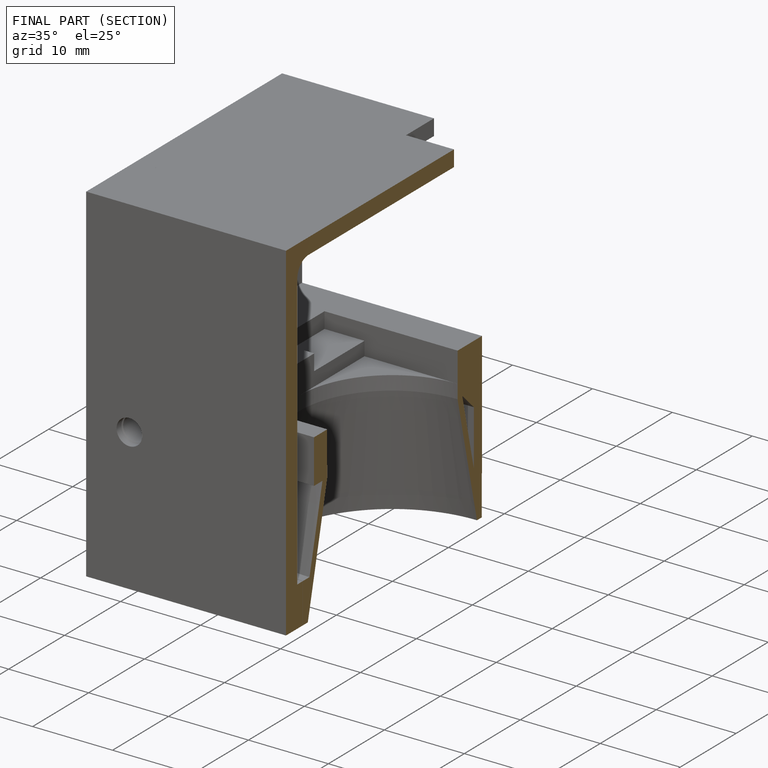
[diagram: finished part — half-section view (interior)]
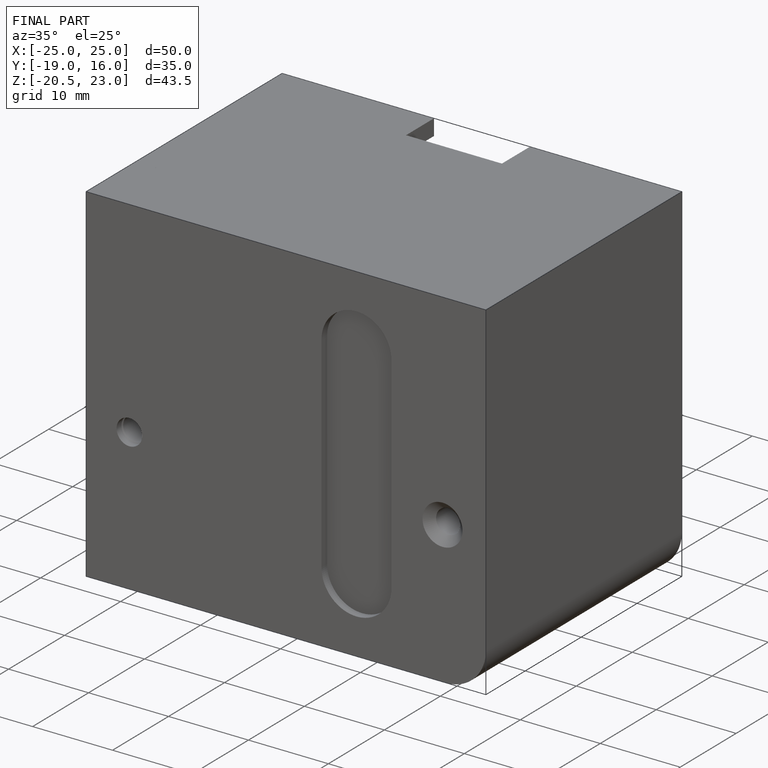
[diagram: finished part — iso view with bounding-box wireframe]
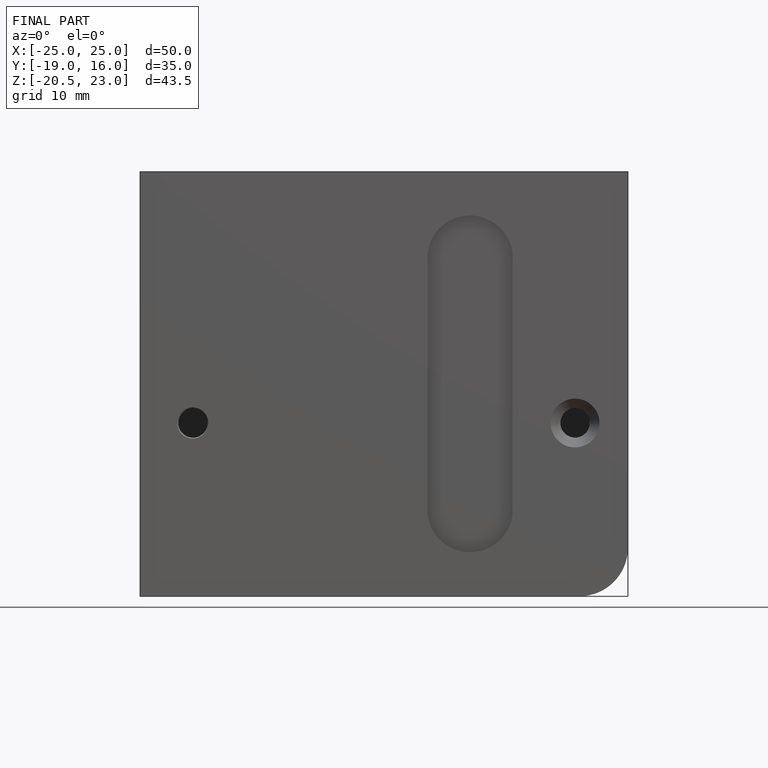
[diagram: finished part — front view with bounding-box wireframe]
